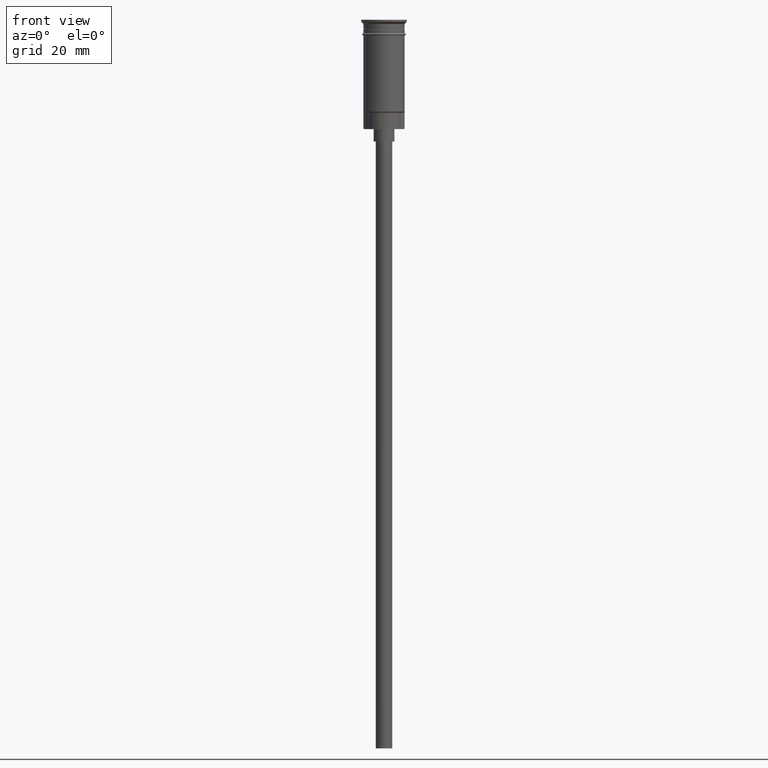
[diagram: clean part render]
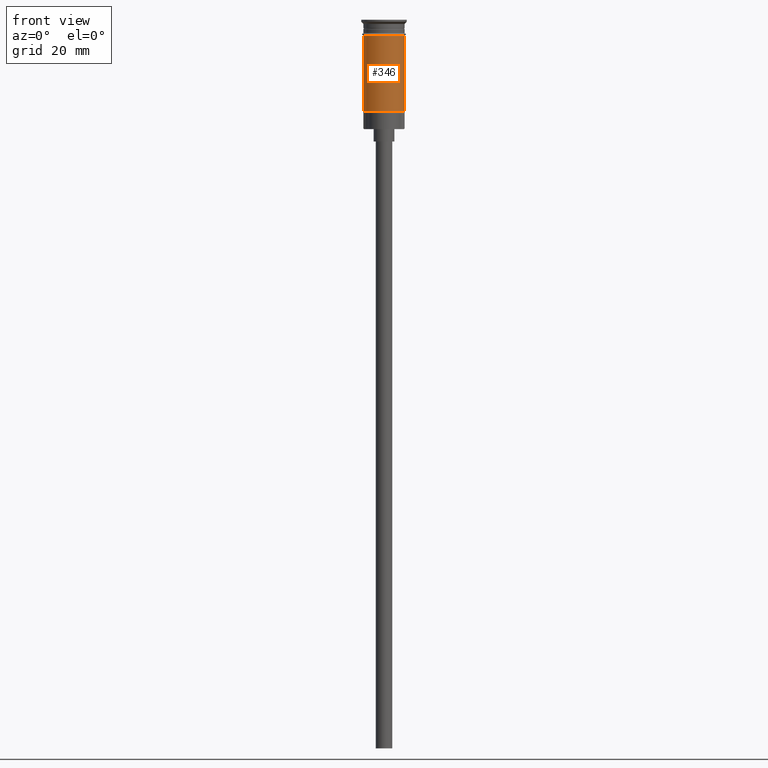
[diagram: same view with one face highlighted and labeled with its STEP entity id]
A machine part, front view. The second image highlights one B-rep face of the part: STEP entity #346.
In plain terms, the highlighted cylindrical surface (edge-blend (fillet) strip) has radius 5 mm, axis along (-0, -0, 1).
Its self-contained STEP definition (entity closure, byte-faithful):
#58 = CARTESIAN_POINT ( 'NONE',  ( 0.000000000000000000, 0.000000000000000000, 0.000000000000000000 ) ) ;
#62 = LINE ( 'NONE', #1422, #696 ) ;
#76 = VECTOR ( 'NONE', #1147, 1000.000000000000000 ) ;
#181 = CYLINDRICAL_SURFACE ( 'NONE', #1208, 4.999999999999996447 ) ;
#207 = CIRCLE ( 'NONE', #1087, 4.999999999999996447 ) ;
#311 = EDGE_CURVE ( 'NONE', #1004, #1326, #801, .T. ) ;
#346 = ADVANCED_FACE ( 'NONE', ( #1274 ), #181, .T. ) ;
#408 = CARTESIAN_POINT ( 'NONE',  ( 0.000000000000000000, 0.000000000000000000, -22.30000000000001137 ) ) ;
#416 = ORIENTED_EDGE ( 'NONE', *, *, #311, .T. ) ;
#448 = DIRECTION ( 'NONE',  ( -0.000000000000000000, -0.000000000000000000, 1.000000000000000000 ) ) ;
#469 = ORIENTED_EDGE ( 'NONE', *, *, #1359, .F. ) ;
#538 = DIRECTION ( 'NONE',  ( -0.000000000000000000, -0.000000000000000000, 1.000000000000000000 ) ) ;
#555 = CARTESIAN_POINT ( 'NONE',  ( 4.999999999999996447, 0.000000000000000000, 0.000000000000000000 ) ) ;
#567 = CIRCLE ( 'NONE', #1550, 4.999999999999999112 ) ;
#570 = CARTESIAN_POINT ( 'NONE',  ( 4.999999999999999112, 0.000000000000000000, -3.799999999999998934 ) ) ;
#615 = EDGE_CURVE ( 'NONE', #1093, #1004, #207, .T. ) ;
#691 = CARTESIAN_POINT ( 'NONE',  ( 0.000000000000000000, 0.000000000000000000, -3.799999999999998934 ) ) ;
#696 = VECTOR ( 'NONE', #538, 1000.000000000000000 ) ;
#737 = CARTESIAN_POINT ( 'NONE',  ( 4.999999999999996447, 6.123233995736761352E-16, -22.30000000000001137 ) ) ;
#767 = EDGE_CURVE ( 'NONE', #1093, #1373, #62, .T. ) ;
#801 = LINE ( 'NONE', #555, #76 ) ;
#983 = ORIENTED_EDGE ( 'NONE', *, *, #767, .F. ) ;
#1004 = VERTEX_POINT ( 'NONE', #737 ) ;
#1070 = DIRECTION ( 'NONE',  ( 1.000000000000000000, 0.000000000000000000, 0.000000000000000000 ) ) ;
#1087 = AXIS2_PLACEMENT_3D ( 'NONE', #408, #1255, #1230 ) ;
#1093 = VERTEX_POINT ( 'NONE', #1601 ) ;
#1104 = CARTESIAN_POINT ( 'NONE',  ( -4.999999999999999112, 6.123233995736765296E-16, -3.799999999999998934 ) ) ;
#1147 = DIRECTION ( 'NONE',  ( -0.000000000000000000, -0.000000000000000000, 1.000000000000000000 ) ) ;
#1208 = AXIS2_PLACEMENT_3D ( 'NONE', #58, #1300, #1432 ) ;
#1230 = DIRECTION ( 'NONE',  ( -1.000000000000000000, 0.000000000000000000, 0.000000000000000000 ) ) ;
#1255 = DIRECTION ( 'NONE',  ( -0.000000000000000000, -0.000000000000000000, 1.000000000000000000 ) ) ;
#1274 = FACE_OUTER_BOUND ( 'NONE', #1567, .T. ) ;
#1290 = ORIENTED_EDGE ( 'NONE', *, *, #615, .T. ) ;
#1300 = DIRECTION ( 'NONE',  ( -0.000000000000000000, -0.000000000000000000, 1.000000000000000000 ) ) ;
#1326 = VERTEX_POINT ( 'NONE', #570 ) ;
#1359 = EDGE_CURVE ( 'NONE', #1373, #1326, #567, .T. ) ;
#1373 = VERTEX_POINT ( 'NONE', #1104 ) ;
#1422 = CARTESIAN_POINT ( 'NONE',  ( -4.999999999999996447, 6.123233995736762338E-16, 0.000000000000000000 ) ) ;
#1432 = DIRECTION ( 'NONE',  ( 1.000000000000000000, 0.000000000000000000, 0.000000000000000000 ) ) ;
#1550 = AXIS2_PLACEMENT_3D ( 'NONE', #691, #448, #1070 ) ;
#1567 = EDGE_LOOP ( 'NONE', ( #983, #1290, #416, #469 ) ) ;
#1601 = CARTESIAN_POINT ( 'NONE',  ( -4.999999999999993783, 0.000000000000000000, -22.30000000000001137 ) ) ;